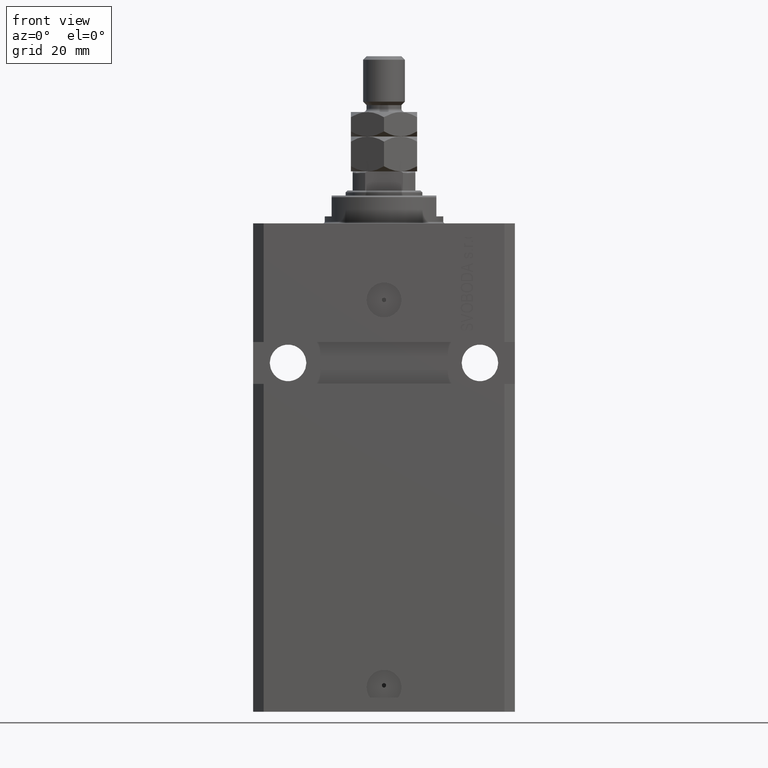
[diagram: clean part render]
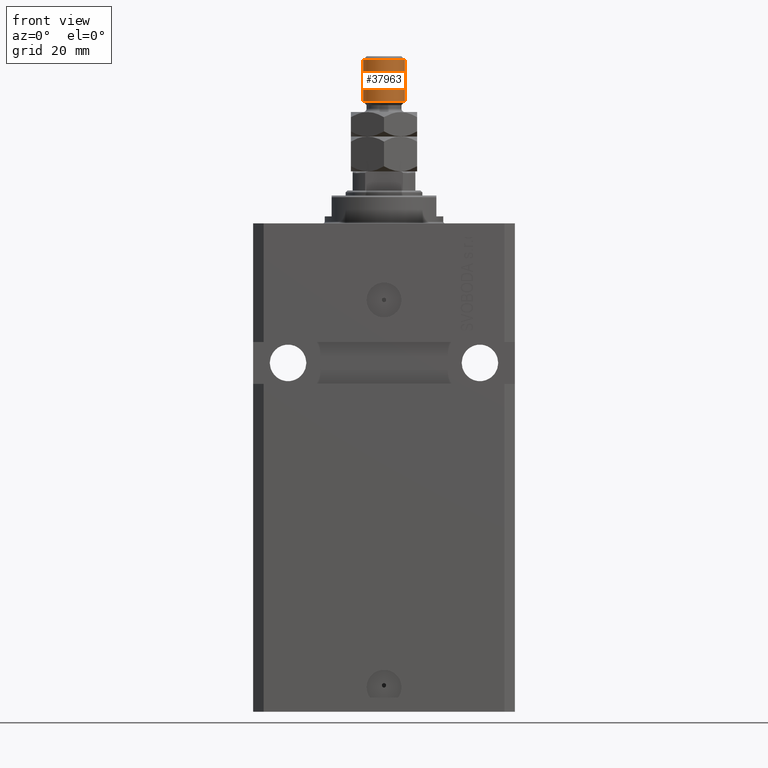
[diagram: same view with one face highlighted and labeled with its STEP entity id]
A machine part, front view. The second image highlights one B-rep face of the part: STEP entity #37963.
In plain terms, the highlighted cylindrical surface (edge-blend (fillet) strip) has radius 6 mm, axis along (-0, -0, -1).
Its self-contained STEP definition (entity closure, byte-faithful):
#991 = CARTESIAN_POINT ( 'NONE',  ( -6.000000000000000888, 0.000000000000000000, 32.00000000000000000 ) ) ;
#1291 = LINE ( 'NONE', #1957, #39613 ) ;
#1957 = CARTESIAN_POINT ( 'NONE',  ( -6.000000000000000888, 0.000000000000000000, 33.00000000000000000 ) ) ;
#4167 = DIRECTION ( 'NONE',  ( -0.000000000000000000, -0.000000000000000000, -1.000000000000000000 ) ) ;
#4337 = EDGE_CURVE ( 'NONE', #8188, #14072, #14337, .T. ) ;
#4750 = CARTESIAN_POINT ( 'NONE',  ( 0.000000000000000000, 0.000000000000000000, 33.00000000000000000 ) ) ;
#5352 = DIRECTION ( 'NONE',  ( -0.000000000000000000, -0.000000000000000000, 1.000000000000000000 ) ) ;
#6830 = EDGE_CURVE ( 'NONE', #8188, #31206, #36420, .T. ) ;
#8188 = VERTEX_POINT ( 'NONE', #22723 ) ;
#9589 = ORIENTED_EDGE ( 'NONE', *, *, #25695, .T. ) ;
#11051 = EDGE_CURVE ( 'NONE', #31206, #36690, #1291, .T. ) ;
#13766 = CYLINDRICAL_SURFACE ( 'NONE', #39291, 6.000000000000000888 ) ;
#13794 = DIRECTION ( 'NONE',  ( 0.000000000000000000, 0.000000000000000000, -1.000000000000000000 ) ) ;
#14072 = VERTEX_POINT ( 'NONE', #19086 ) ;
#14337 = LINE ( 'NONE', #27918, #34861 ) ;
#15605 = DIRECTION ( 'NONE',  ( -0.000000000000000000, -0.000000000000000000, -1.000000000000000000 ) ) ;
#16536 = AXIS2_PLACEMENT_3D ( 'NONE', #31323, #13794, #44970 ) ;
#16929 = CIRCLE ( 'NONE', #44951, 6.000000000000000888 ) ;
#19086 = CARTESIAN_POINT ( 'NONE',  ( 6.000000000000000888, 7.347880794884120722E-16, 20.00000000000000711 ) ) ;
#19446 = DIRECTION ( 'NONE',  ( 1.000000000000000000, 0.000000000000000000, 0.000000000000000000 ) ) ;
#22723 = CARTESIAN_POINT ( 'NONE',  ( 6.000000000000000888, 7.347880794884120722E-16, 32.00000000000000000 ) ) ;
#23127 = CARTESIAN_POINT ( 'NONE',  ( 0.000000000000000000, 0.000000000000000000, 20.00000000000000711 ) ) ;
#25695 = EDGE_CURVE ( 'NONE', #36690, #14072, #16929, .T. ) ;
#27918 = CARTESIAN_POINT ( 'NONE',  ( 6.000000000000000888, 7.347880794884120722E-16, 33.00000000000000000 ) ) ;
#28967 = DIRECTION ( 'NONE',  ( -0.000000000000000000, -0.000000000000000000, -1.000000000000000000 ) ) ;
#31206 = VERTEX_POINT ( 'NONE', #991 ) ;
#31323 = CARTESIAN_POINT ( 'NONE',  ( 0.000000000000000000, 0.000000000000000000, 32.00000000000000000 ) ) ;
#31573 = CARTESIAN_POINT ( 'NONE',  ( -6.000000000000000888, 0.000000000000000000, 20.00000000000000711 ) ) ;
#32896 = DIRECTION ( 'NONE',  ( -1.000000000000000000, 0.000000000000000000, 0.000000000000000000 ) ) ;
#34861 = VECTOR ( 'NONE', #4167, 1000.000000000000000 ) ;
#36420 = CIRCLE ( 'NONE', #16536, 6.000000000000000888 ) ;
#36690 = VERTEX_POINT ( 'NONE', #31573 ) ;
#37837 = EDGE_LOOP ( 'NONE', ( #39043, #41232, #41715, #9589 ) ) ;
#37963 = ADVANCED_FACE ( 'NONE', ( #45396 ), #13766, .T. ) ;
#39043 = ORIENTED_EDGE ( 'NONE', *, *, #4337, .F. ) ;
#39291 = AXIS2_PLACEMENT_3D ( 'NONE', #4750, #28967, #32896 ) ;
#39613 = VECTOR ( 'NONE', #15605, 1000.000000000000000 ) ;
#41232 = ORIENTED_EDGE ( 'NONE', *, *, #6830, .T. ) ;
#41715 = ORIENTED_EDGE ( 'NONE', *, *, #11051, .T. ) ;
#44951 = AXIS2_PLACEMENT_3D ( 'NONE', #23127, #5352, #19446 ) ;
#44970 = DIRECTION ( 'NONE',  ( 1.000000000000000000, 0.000000000000000000, 0.000000000000000000 ) ) ;
#45396 = FACE_OUTER_BOUND ( 'NONE', #37837, .T. ) ;